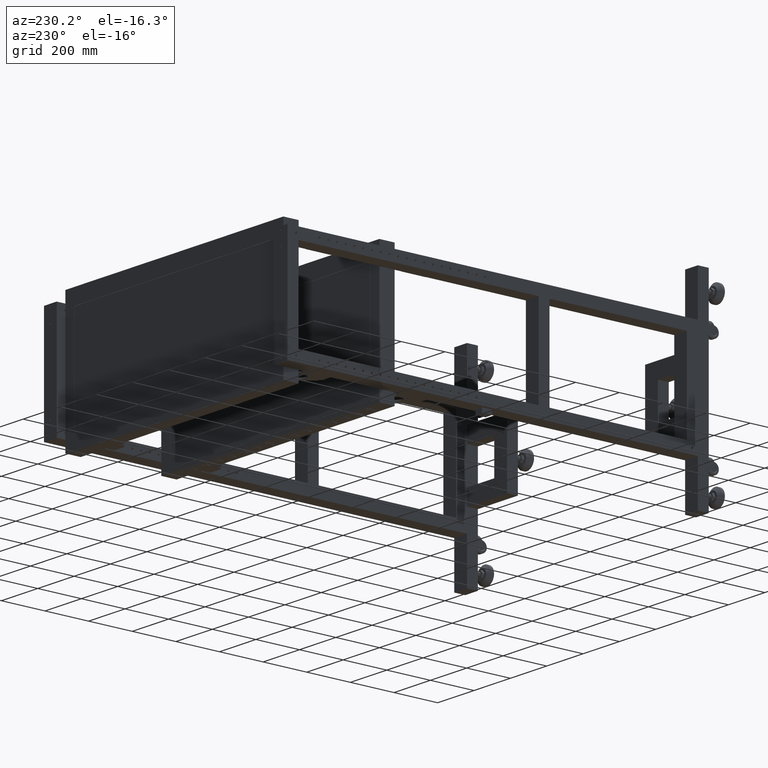
[diagram: clean part render]
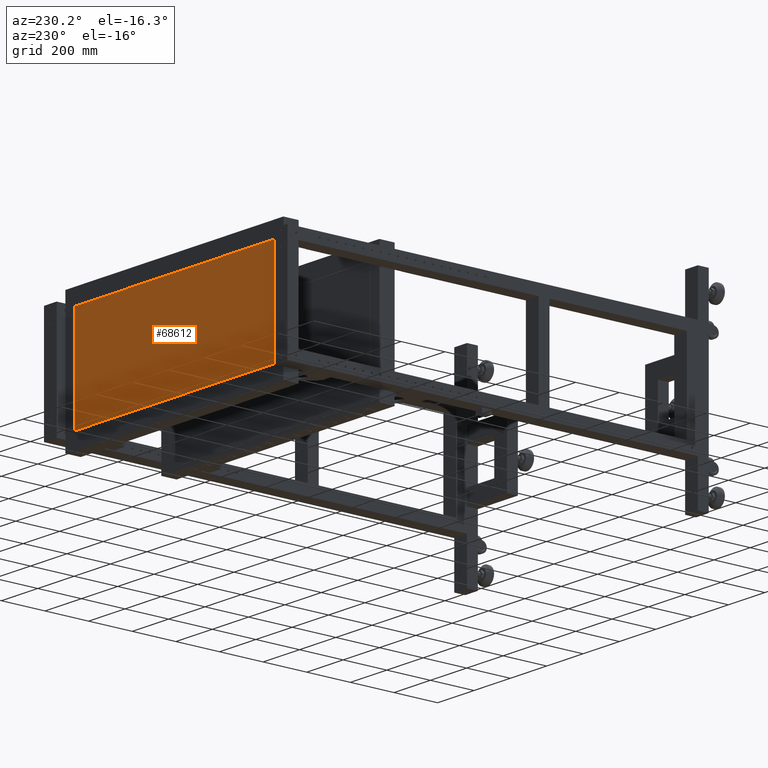
[diagram: same view with one face highlighted and labeled with its STEP entity id]
A machine part, auxiliary view. The second image highlights one B-rep face of the part: STEP entity #68612.
In plain terms, the highlighted planar face has unit normal (-0, 1, 0).
Its self-contained STEP definition (entity closure, byte-faithful):
#589 = CARTESIAN_POINT ( 'NONE',  ( -1216.662487437185973, 996.9410804020126307, 228.4900000000011744 ) ) ;
#1492 = ORIENTED_EDGE ( 'NONE', *, *, #17869, .F. ) ;
#4816 = DIRECTION ( 'NONE',  ( -2.251766706479394348E-16, 1.000000000000000000, 1.000000000000000472E-15 ) ) ;
#14251 = VECTOR ( 'NONE', #80390, 1000.000000000000000 ) ;
#15505 = VECTOR ( 'NONE', #25129, 1000.000000000000000 ) ;
#16946 = ORIENTED_EDGE ( 'NONE', *, *, #77071, .F. ) ;
#17412 = FACE_OUTER_BOUND ( 'NONE', #49898, .T. ) ;
#17856 = AXIS2_PLACEMENT_3D ( 'NONE', #54798, #4816, #55609 ) ;
#17869 = EDGE_CURVE ( 'NONE', #63520, #33650, #49523, .T. ) ;
#22963 = EDGE_CURVE ( 'NONE', #77683, #63520, #48954, .T. ) ;
#25129 = DIRECTION ( 'NONE',  ( 2.251766706479395497E-31, -1.000000000000000472E-15, 1.000000000000000000 ) ) ;
#30238 = DIRECTION ( 'NONE',  ( 1.000000000000000000, 2.251766706479394348E-16, 0.000000000000000000 ) ) ;
#30570 = VECTOR ( 'NONE', #64650, 1000.000000000000000 ) ;
#31605 = CARTESIAN_POINT ( 'NONE',  ( -1216.662487437185973, 996.9410804020130854, -228.4899999999988438 ) ) ;
#33650 = VERTEX_POINT ( 'NONE', #50484 ) ;
#37145 = CARTESIAN_POINT ( 'NONE',  ( -2286.662487437184154, 996.9410804020127443, -228.4899999999988438 ) ) ;
#39084 = CARTESIAN_POINT ( 'NONE',  ( 110.3175125628159634, 996.9410804020128580, 228.4900000000011744 ) ) ;
#39887 = LINE ( 'NONE', #39084, #30570 ) ;
#45727 = CARTESIAN_POINT ( 'NONE',  ( -119.6824874371840224, 996.9410804020131991, -228.4899999999988438 ) ) ;
#47938 = LINE ( 'NONE', #72683, #14251 ) ;
#48954 = LINE ( 'NONE', #37145, #54048 ) ;
#49523 = LINE ( 'NONE', #67773, #15505 ) ;
#49898 = EDGE_LOOP ( 'NONE', ( #60768, #56482, #16946, #1492 ) ) ;
#50121 = VERTEX_POINT ( 'NONE', #589 ) ;
#50484 = CARTESIAN_POINT ( 'NONE',  ( -119.6824874371840224, 996.9410804020127443, 228.4900000000011744 ) ) ;
#54048 = VECTOR ( 'NONE', #30238, 1000.000000000000000 ) ;
#54798 = CARTESIAN_POINT ( 'NONE',  ( -1088.172487437184145, 996.9410804020128580, 1.167234175856414311E-12 ) ) ;
#55609 = DIRECTION ( 'NONE',  ( 2.251766706479395497E-31, -1.000000000000000472E-15, 1.000000000000000000 ) ) ;
#56482 = ORIENTED_EDGE ( 'NONE', *, *, #70543, .T. ) ;
#60768 = ORIENTED_EDGE ( 'NONE', *, *, #22963, .F. ) ;
#63520 = VERTEX_POINT ( 'NONE', #45727 ) ;
#64650 = DIRECTION ( 'NONE',  ( -1.000000000000000000, -2.251766706479394348E-16, 0.000000000000000000 ) ) ;
#67773 = CARTESIAN_POINT ( 'NONE',  ( -119.6824874371840224, 996.9410804020131991, -228.4899999999988438 ) ) ;
#68612 = ADVANCED_FACE ( 'NONE', ( #17412 ), #79958, .T. ) ;
#70543 = EDGE_CURVE ( 'NONE', #77683, #50121, #47938, .T. ) ;
#72683 = CARTESIAN_POINT ( 'NONE',  ( -1216.662487437185973, 996.9410804020130854, -228.4899999999988438 ) ) ;
#77071 = EDGE_CURVE ( 'NONE', #33650, #50121, #39887, .T. ) ;
#77683 = VERTEX_POINT ( 'NONE', #31605 ) ;
#79958 = PLANE ( 'NONE',  #17856 ) ;
#80390 = DIRECTION ( 'NONE',  ( 0.000000000000000000, -1.000000000000000472E-15, 1.000000000000000000 ) ) ;